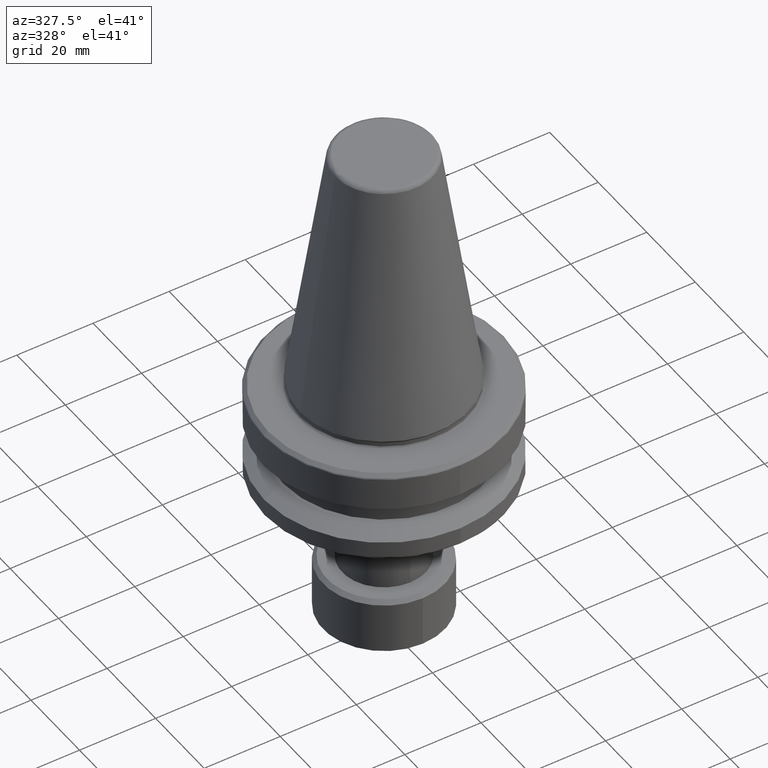
[diagram: clean part render]
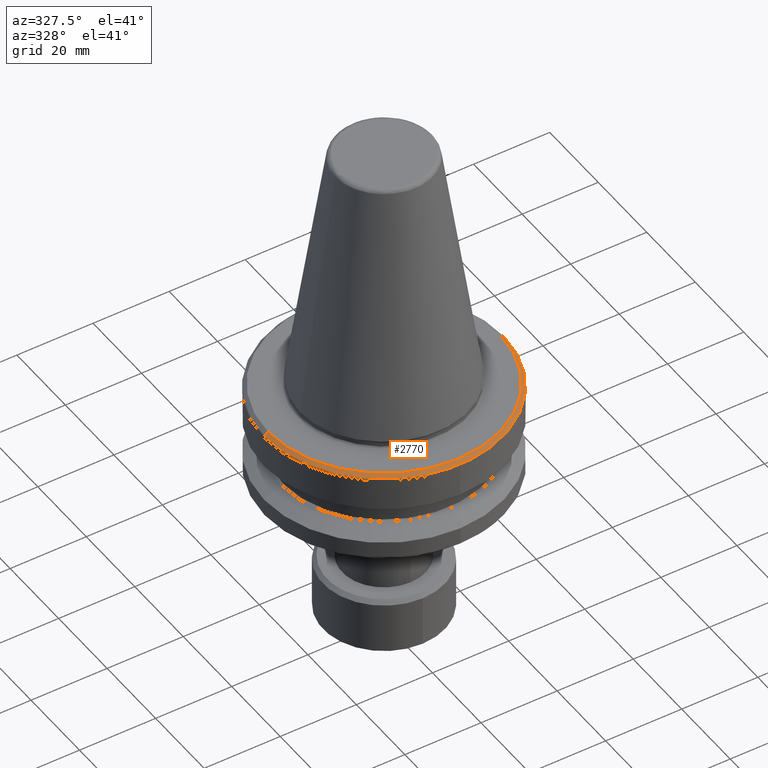
[diagram: same view with one face highlighted and labeled with its STEP entity id]
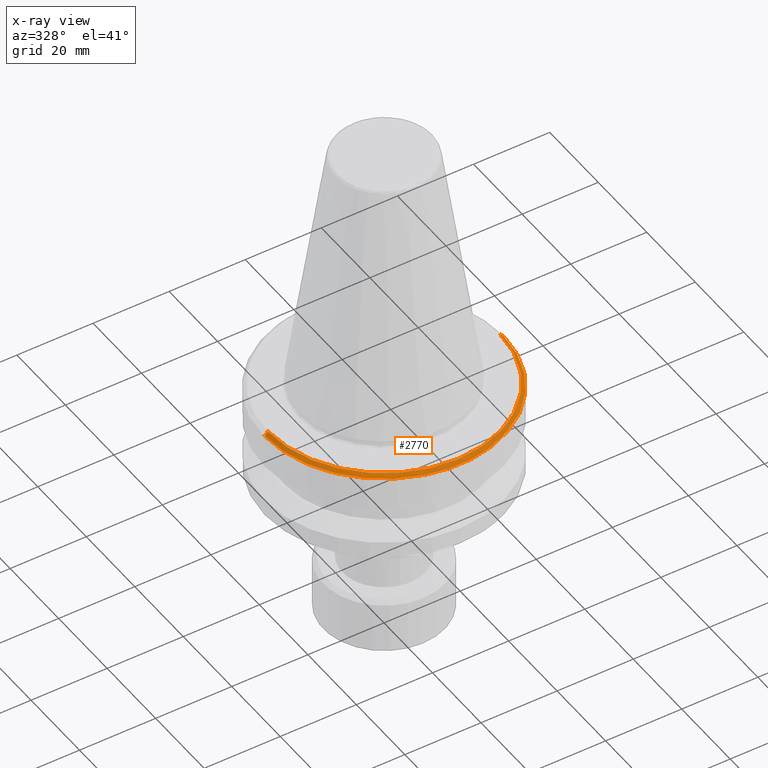
[diagram: x-ray of the same camera — body ghosted, the highlighted face saturated]
A machine part, auxiliary view. The second image highlights one B-rep face of the part: STEP entity #2770.
The next image is the same camera in x-ray: the body ghosted, the highlighted face saturated — about 0% of this face is hidden behind the body in this view.
In plain terms, the highlighted conical surface has half-angle 45 deg.
Its self-contained STEP definition (entity closure, byte-faithful):
#11 = DIRECTION ( 'NONE',  ( -1.000000000000000000, 0.0000000000000000000, 0.0000000000000000000 ) ) ;
#55 = CIRCLE ( 'NONE', #1817, 31.38284271303032500 ) ;
#56 = DIRECTION ( 'NONE',  ( 1.000000000000000000, 0.0000000000000000000, 0.0000000000000000000 ) ) ;
#72 = CARTESIAN_POINT ( 'NONE',  ( 5.244589484920680900E-011, -1.923182099683451400E-009, -2.882842712846180400 ) ) ;
#120 = CONICAL_SURFACE ( 'NONE', #2483, 30.61715728800000500, 0.7853981633974466100 ) ;
#163 = FACE_OUTER_BOUND ( 'NONE', #2775, .T. ) ;
#262 = CIRCLE ( 'NONE', #2161, 30.50000000005942300 ) ;
#311 = CIRCLE ( 'NONE', #459, 31.38284271269702000 ) ;
#414 = CARTESIAN_POINT ( 'NONE',  ( 0.0000000000000000000, 0.0000000000000000000, -2.882842712630354000 ) ) ;
#415 = CARTESIAN_POINT ( 'NONE',  ( -30.61715728800000500, 0.0000000000000000000, -2.117157288000000500 ) ) ;
#459 = AXIS2_PLACEMENT_3D ( 'NONE', #414, #2061, #662 ) ;
#499 = EDGE_CURVE ( 'NONE', #1483, #1791, #1001, .T. ) ;
#514 = VERTEX_POINT ( 'NONE', #1202 ) ;
#631 = VECTOR ( 'NONE', #2677, 1000.000000000000000 ) ;
#635 = CARTESIAN_POINT ( 'NONE',  ( -30.50000000005942600, 0.0000000000000000000, -1.999999999992743600 ) ) ;
#636 = LINE ( 'NONE', #415, #631 ) ;
#662 = DIRECTION ( 'NONE',  ( 1.000000000000000000, 0.0000000000000000000, 0.0000000000000000000 ) ) ;
#664 = AXIS2_PLACEMENT_3D ( 'NONE', #72, #2150, #768 ) ;
#766 = EDGE_CURVE ( 'NONE', #514, #2562, #894, .T. ) ;
#768 = DIRECTION ( 'NONE',  ( -1.000000000000000000, 0.0000000000000000000, -1.381904351261937500E-017 ) ) ;
#877 = VECTOR ( 'NONE', #2346, 1000.000000000000000 ) ;
#894 = LINE ( 'NONE', #2742, #877 ) ;
#925 = ORIENTED_EDGE ( 'NONE', *, *, #499, .F. ) ;
#1001 = CIRCLE ( 'NONE', #664, 31.38284271253433000 ) ;
#1082 = VERTEX_POINT ( 'NONE', #1737 ) ;
#1202 = CARTESIAN_POINT ( 'NONE',  ( 30.50000000005942600, 3.789231262583820800E-015, -1.999999999992743600 ) ) ;
#1306 = ORIENTED_EDGE ( 'NONE', *, *, #2561, .F. ) ;
#1330 = VERTEX_POINT ( 'NONE', #635 ) ;
#1343 = CARTESIAN_POINT ( 'NONE',  ( -3.750550217618275900E-010, -1.435768775252311100E-014, -2.882842712846181300 ) ) ;
#1346 = CARTESIAN_POINT ( 'NONE',  ( -31.38284271284618800, 0.0000000000000000000, -2.882842712846180400 ) ) ;
#1397 = CARTESIAN_POINT ( 'NONE',  ( 0.0000000000000000000, 0.0000000000000000000, -2.117157288000000500 ) ) ;
#1418 = EDGE_CURVE ( 'NONE', #1330, #1791, #636, .T. ) ;
#1461 = DIRECTION ( 'NONE',  ( -0.0000000000000000000, -0.0000000000000000000, 1.000000000000000000 ) ) ;
#1483 = VERTEX_POINT ( 'NONE', #2476 ) ;
#1496 = ORIENTED_EDGE ( 'NONE', *, *, #2502, .T. ) ;
#1586 = DIRECTION ( 'NONE',  ( -1.000000000000000000, 0.0000000000000000000, 0.0000000000000000000 ) ) ;
#1737 = CARTESIAN_POINT ( 'NONE',  ( 8.577052702217638800, -30.18802715788671500, -2.882842712941815900 ) ) ;
#1791 = VERTEX_POINT ( 'NONE', #1346 ) ;
#1817 = AXIS2_PLACEMENT_3D ( 'NONE', #1343, #2854, #1586 ) ;
#1862 = ORIENTED_EDGE ( 'NONE', *, *, #766, .F. ) ;
#2061 = DIRECTION ( 'NONE',  ( -0.0000000000000000000, -0.0000000000000000000, 1.000000000000000000 ) ) ;
#2105 = DIRECTION ( 'NONE',  ( 0.0000000000000000000, 0.0000000000000000000, -1.000000000000000000 ) ) ;
#2130 = ORIENTED_EDGE ( 'NONE', *, *, #2872, .F. ) ;
#2150 = DIRECTION ( 'NONE',  ( 1.120418088046871300E-017, 1.345579036093566200E-020, -1.000000000000000000 ) ) ;
#2161 = AXIS2_PLACEMENT_3D ( 'NONE', #2744, #1461, #56 ) ;
#2173 = ORIENTED_EDGE ( 'NONE', *, *, #1418, .T. ) ;
#2346 = DIRECTION ( 'NONE',  ( 0.7071067811865463500, 8.659560562354918100E-017, -0.7071067811865487900 ) ) ;
#2476 = CARTESIAN_POINT ( 'NONE',  ( -8.504518747446711700, -30.20854146961946900, -2.882842713806664100 ) ) ;
#2483 = AXIS2_PLACEMENT_3D ( 'NONE', #1397, #2105, #11 ) ;
#2502 = EDGE_CURVE ( 'NONE', #1483, #1082, #311, .T. ) ;
#2545 = CARTESIAN_POINT ( 'NONE',  ( 31.38284271274131100, 0.0000000000000000000, -2.882842712846926900 ) ) ;
#2561 = EDGE_CURVE ( 'NONE', #1330, #514, #262, .T. ) ;
#2562 = VERTEX_POINT ( 'NONE', #2545 ) ;
#2677 = DIRECTION ( 'NONE',  ( -0.7071067811865463500, 0.0000000000000000000, -0.7071067811865487900 ) ) ;
#2742 = CARTESIAN_POINT ( 'NONE',  ( 30.61715728800000500, 3.749520367174026700E-015, -2.117157288000000500 ) ) ;
#2744 = CARTESIAN_POINT ( 'NONE',  ( 0.0000000000000000000, 0.0000000000000000000, -1.999999999992743600 ) ) ;
#2770 = ADVANCED_FACE ( 'NONE', ( #163 ), #120, .T. ) ;
#2775 = EDGE_LOOP ( 'NONE', ( #1862, #1306, #2173, #925, #1496, #2130 ) ) ;
#2854 = DIRECTION ( 'NONE',  ( -0.0000000000000000000, 0.0000000000000000000, -1.000000000000000000 ) ) ;
#2872 = EDGE_CURVE ( 'NONE', #2562, #1082, #55, .T. ) ;